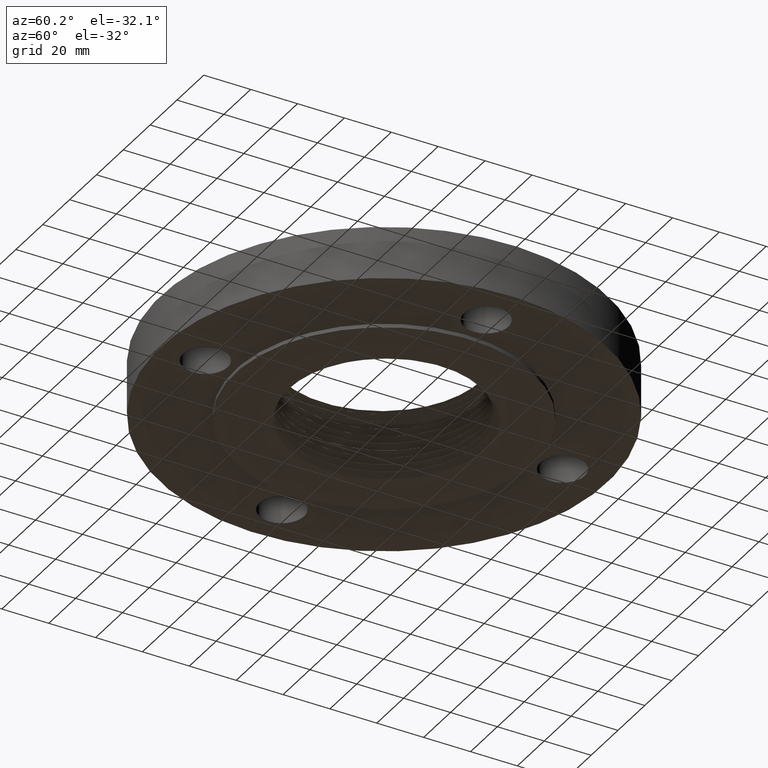
[diagram: clean part render]
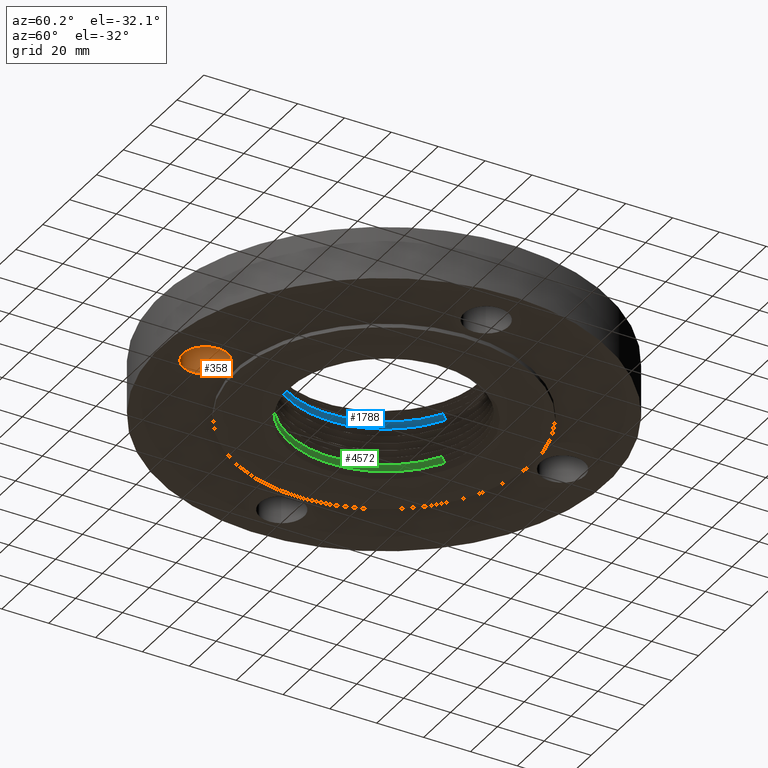
[diagram: same view with three faces highlighted in distinct colors, each labeled with its STEP entity id]
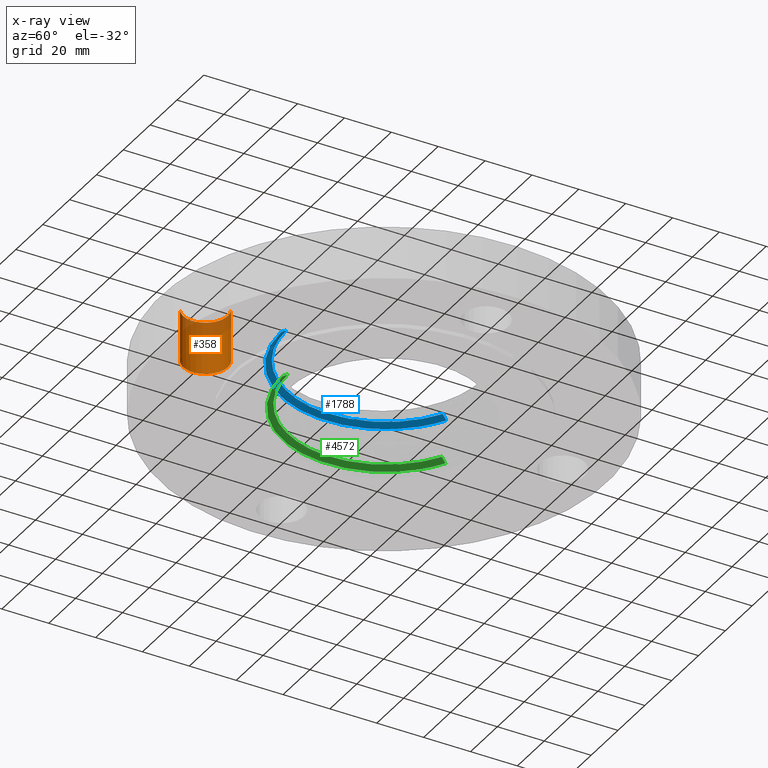
[diagram: x-ray of the same camera — body ghosted, the three highlighted faces saturated]
A machine part, auxiliary view with three faces highlighted in distinct colors.
The next image is the same camera in x-ray (body ghosted, the three faces saturated) — at least one of them is partly hidden behind the body in this view.
Their STEP definitions:

[orange] entity #358 — the highlighted cylindrical surface (edge-blend (fillet) strip) has radius 9.525 mm, axis along (0, -0, -1).
#322=AXIS2_PLACEMENT_3D('Cylinder Axis2P3D',#319,#320,#321) ;
#335=AXIS2_PLACEMENT_3D('Circle Axis2P3D',#333,#334,$) ;
#349=AXIS2_PLACEMENT_3D('Circle Axis2P3D',#347,#348,$) ;
#319=CARTESIAN_POINT('Axis2P3D Location',(-3.7578544923E-016,-3.00000000001,0.87606299213)) ;
#324=CARTESIAN_POINT('Line Origine',(-0.179784576977,-3.32909346072,0.440000000002)) ;
#328=CARTESIAN_POINT('Vertex',(-0.179784576977,-3.32909346072,0.)) ;
#330=CARTESIAN_POINT('Vertex',(-0.179784576977,-3.32909346072,0.880000000004)) ;
#333=CARTESIAN_POINT('Axis2P3D Location',(-3.7578544923E-016,-3.00000000001,0.)) ;
#337=CARTESIAN_POINT('Vertex',(0.179784576977,-2.6709065393,0.)) ;
#340=CARTESIAN_POINT('Line Origine',(0.179784576977,-2.6709065393,0.440000000002)) ;
#344=CARTESIAN_POINT('Vertex',(0.179784576977,-2.6709065393,0.880000000004)) ;
#347=CARTESIAN_POINT('Axis2P3D Location',(-3.7578544923E-016,-3.00000000001,0.880000000004)) ;
#320=DIRECTION('Axis2P3D Direction',(0.,-0.,-0.0393700787402)) ;
#321=DIRECTION('Axis2P3D XDirection',(0.0188750212049,0.0345504945626,-0.)) ;
#325=DIRECTION('Vector Direction',(0.,0.,-0.0393700787402)) ;
#334=DIRECTION('Axis2P3D Direction',(0.,-0.,-0.0393700787402)) ;
#341=DIRECTION('Vector Direction',(0.,0.,-0.0393700787402)) ;
#348=DIRECTION('Axis2P3D Direction',(0.,-0.,-0.0393700787402)) ;
#326=VECTOR('Line Direction',#325,0.0393700787402) ;
#342=VECTOR('Line Direction',#341,0.0393700787402) ;
#353=ORIENTED_EDGE('',*,*,#332,.F.) ;
#354=ORIENTED_EDGE('',*,*,#339,.T.) ;
#355=ORIENTED_EDGE('',*,*,#346,.T.) ;
#356=ORIENTED_EDGE('',*,*,#351,.F.) ;
#358=ADVANCED_FACE('PartBody',(#357),#323,.F.) ;
#336=CIRCLE('generated circle',#335,0.375000000002) ;
#350=CIRCLE('generated circle',#349,0.375000000002) ;
#323=CYLINDRICAL_SURFACE('generated cylinder',#322,0.375000000002) ;
#332=EDGE_CURVE('',#329,#331,#327,.F.) ;
#339=EDGE_CURVE('',#329,#338,#336,.T.) ;
#346=EDGE_CURVE('',#338,#345,#343,.F.) ;
#351=EDGE_CURVE('',#331,#345,#350,.T.) ;
#352=EDGE_LOOP('',(#353,#354,#355,#356)) ;
#357=FACE_OUTER_BOUND('',#352,.T.) ;
#327=LINE('Line',#324,#326) ;
#343=LINE('Line',#340,#342) ;
#329=VERTEX_POINT('',#328) ;
#331=VERTEX_POINT('',#330) ;
#338=VERTEX_POINT('',#337) ;
#345=VERTEX_POINT('',#344) ;

[blue] entity #1788 — the highlighted face is a freeform B-spline surface patch.
#1363=CARTESIAN_POINT('Vertex',(-4.90194678857E-006,-1.63773497663,0.94067851638)) ;
#1367=CARTESIAN_POINT('Control Point',(-0.78438463014,1.43580643457,0.888125768527)) ;
#1368=CARTESIAN_POINT('Control Point',(-0.896737119144,1.3744834126,0.889682188277)) ;
#1369=CARTESIAN_POINT('Control Point',(-1.00309482077,1.30217195058,0.891238579647)) ;
#1370=CARTESIAN_POINT('Control Point',(-1.10407263731,1.21837240649,0.892823631061)) ;
#1371=CARTESIAN_POINT('Control Point',(-1.28896689683,1.02936986277,0.896022297295)) ;
#1372=CARTESIAN_POINT('Control Point',(-1.43256388509,0.807356079657,0.899220696131)) ;
#1373=CARTESIAN_POINT('Control Point',(-1.49204510058,0.690385980516,0.900805480148)) ;
#1374=CARTESIAN_POINT('Control Point',(-1.60284439288,0.40878890508,0.904466490629)) ;
#1375=CARTESIAN_POINT('Control Point',(-1.64701527695,0.108181512544,0.90812790754)) ;
#1376=CARTESIAN_POINT('Control Point',(-1.64925036072,-0.0670274686927,0.910239643748)) ;
#1377=CARTESIAN_POINT('Control Point',(-1.61791182848,-0.326584768101,0.913397144921)) ;
#1378=CARTESIAN_POINT('Control Point',(-1.53695779869,-0.573247697273,0.916542598083)) ;
#1379=CARTESIAN_POINT('Control Point',(-1.50460204122,-0.653655456637,0.917590892668)) ;
#1380=CARTESIAN_POINT('Control Point',(-1.42923584582,-0.809991812822,0.919690744234)) ;
#1381=CARTESIAN_POINT('Control Point',(-1.3339585672,-0.955024958285,0.921791030193)) ;
#1382=CARTESIAN_POINT('Control Point',(-1.28166829836,-1.02411624119,0.922839759171)) ;
#1383=CARTESIAN_POINT('Control Point',(-1.16883993339,-1.15451988369,0.924930817001)) ;
#1384=CARTESIAN_POINT('Control Point',(-1.03990818675,-1.26905636835,0.927025252236)) ;
#1385=CARTESIAN_POINT('Control Point',(-0.971508766235,-1.3222457691,0.928077180531)) ;
#1386=CARTESIAN_POINT('Control Point',(-0.827718657821,-1.41942447624,0.930185083588)) ;
#1387=CARTESIAN_POINT('Control Point',(-0.67233090185,-1.49685548749,0.932290944138)) ;
#1388=CARTESIAN_POINT('Control Point',(-0.592320129334,-1.530273803,0.933340829927)) ;
#1389=CARTESIAN_POINT('Control Point',(-0.428708569374,-1.58634931735,0.935434107473)) ;
#1390=CARTESIAN_POINT('Control Point',(-0.259073948479,-1.62049101053,0.937527125165)) ;
#1391=CARTESIAN_POINT('Control Point',(-0.173065063925,-1.63195375104,0.938576216698)) ;
#1392=CARTESIAN_POINT('Control Point',(-0.0865366237358,-1.63770186961,0.939627373409)) ;
#1393=CARTESIAN_POINT('Control Point',(-4.90194678563E-006,-1.63773497663,0.94067851638)) ;
#1394=CARTESIAN_POINT('Vertex',(-0.784379702465,1.43580912413,0.888125700264)) ;
#1741=CARTESIAN_POINT('Control Point',(-7.42057685394E-007,-1.73446003675,0.875938263171)) ;
#1742=CARTESIAN_POINT('Control Point',(-4.95673762455E-006,-1.63646098902,0.941531224878)) ;
#1743=CARTESIAN_POINT('Control Point',(-0.61186088098,-1.73424046145,0.868920188165)) ;
#1744=CARTESIAN_POINT('Control Point',(-0.577294368805,-1.63623992694,0.934513149873)) ;
#1745=CARTESIAN_POINT('Control Point',(-1.22362800713,-1.46421576542,0.861900948375)) ;
#1746=CARTESIAN_POINT('Control Point',(-1.15448447231,-1.381457973,0.927493921319)) ;
#1747=CARTESIAN_POINT('Control Point',(-1.66858999436,-0.92539130836,0.854952872332)) ;
#1748=CARTESIAN_POINT('Control Point',(-1.57428205906,-0.873074297151,0.92054583402)) ;
#1749=CARTESIAN_POINT('Control Point',(-1.89247069268,0.0518283584305,0.84442737776)) ;
#1750=CARTESIAN_POINT('Control Point',(-1.78548131077,0.048909817595,0.910020339437)) ;
#1751=CARTESIAN_POINT('Control Point',(-1.5206172932,0.914274184334,0.833899312068)) ;
#1752=CARTESIAN_POINT('Control Point',(-1.43463217137,0.862583216083,0.899492273734)) ;
#1753=CARTESIAN_POINT('Control Point',(-1.33457783809,1.16905992748,0.830396595601)) ;
#1754=CARTESIAN_POINT('Control Point',(-1.25910620159,1.10295738248,0.895989551978)) ;
#1755=CARTESIAN_POINT('Control Point',(-1.09877972915,1.3743942095,0.826891161884)) ;
#1756=CARTESIAN_POINT('Control Point',(-1.03663759923,1.296674281,0.892484123542)) ;
#1757=CARTESIAN_POINT('Control Point',(-0.830756441325,1.52069101485,0.823385447105)) ;
#1758=CARTESIAN_POINT('Control Point',(-0.783768863964,1.43469112558,0.88897840876)) ;
#1760=CARTESIAN_POINT('Control Point',(-7.42057685723E-007,-1.73446003675,0.875938263171)) ;
#1761=CARTESIAN_POINT('Control Point',(-4.90194678595E-006,-1.63773497663,0.94067851638)) ;
#1762=CARTESIAN_POINT('Vertex',(-7.42057686969E-007,-1.73446003675,0.875938263171)) ;
#1766=CARTESIAN_POINT('Control Point',(-7.42057685394E-007,-1.73446003675,0.875938263171)) ;
#1767=CARTESIAN_POINT('Control Point',(-0.61186088098,-1.73424046145,0.868920188165)) ;
#1768=CARTESIAN_POINT('Control Point',(-1.22362800713,-1.46421576542,0.861900948375)) ;
#1769=CARTESIAN_POINT('Control Point',(-1.66858999436,-0.92539130836,0.854952872332)) ;
#1770=CARTESIAN_POINT('Control Point',(-1.89247069268,0.0518283584305,0.84442737776)) ;
#1771=CARTESIAN_POINT('Control Point',(-1.5206172932,0.914274184334,0.833899312068)) ;
#1772=CARTESIAN_POINT('Control Point',(-1.33457783809,1.16905992748,0.830396595601)) ;
#1773=CARTESIAN_POINT('Control Point',(-1.09877972915,1.3743942095,0.826891161884)) ;
#1774=CARTESIAN_POINT('Control Point',(-0.830756441325,1.52069101485,0.823385447105)) ;
#1775=CARTESIAN_POINT('Vertex',(-0.830756441325,1.52069101485,0.823385447105)) ;
#1779=CARTESIAN_POINT('Control Point',(-0.830756441325,1.52069101485,0.823385447105)) ;
#1780=CARTESIAN_POINT('Control Point',(-0.784379702465,1.43580912413,0.888125700264)) ;
#1783=ORIENTED_EDGE('',*,*,#1764,.T.) ;
#1784=ORIENTED_EDGE('',*,*,#1777,.T.) ;
#1785=ORIENTED_EDGE('',*,*,#1781,.F.) ;
#1786=ORIENTED_EDGE('',*,*,#1396,.T.) ;
#1788=ADVANCED_FACE('PartBody',(#1787),#1740,.T.) ;
#1366=B_SPLINE_CURVE_WITH_KNOTS('',5,(#1367,#1368,#1369,#1370,#1371,#1372,#1373,#1374,#1375,#1376,#1377,#1378,#1379,#1380,#1381,#1382,#1383,#1384,#1385,#1386,#1387,#1388,#1389,#1390,#1391,#1392,#1393),.UNSPECIFIED.,.F.,.U.,(6,3,3,3,3,3,3,3,6),(0.,23.5645700511,47.1291401022,79.0063270977,94.8714636346,110.736600171,126.59729768,142.457995189,158.380374393),.UNSPECIFIED.) ;
#1759=B_SPLINE_CURVE_WITH_KNOTS('',1,(#1760,#1761),.UNSPECIFIED.,.F.,.U.,(2,2),(-1.49764450472,1.45870574781),.UNSPECIFIED.) ;
#1765=B_SPLINE_CURVE_WITH_KNOTS('',5,(#1766,#1767,#1768,#1769,#1770,#1771,#1772,#1773,#1774),.UNSPECIFIED.,.F.,.U.,(6,3,6),(0.,75.5057577602,113.186153911),.UNSPECIFIED.) ;
#1778=B_SPLINE_CURVE_WITH_KNOTS('',1,(#1779,#1780),.UNSPECIFIED.,.F.,.U.,(2,2),(-1.49764450472,1.45870574788),.UNSPECIFIED.) ;
#1740=B_SPLINE_SURFACE_WITH_KNOTS('',5,1,((#1741,#1742),(#1743,#1744),(#1745,#1746),(#1747,#1748),(#1749,#1750),(#1751,#1752),(#1753,#1754),(#1755,#1756),(#1757,#1758)),.UNSPECIFIED.,.F.,.F.,.U.,(6,3,6),(2,2),(0.,75.5057577602,113.186153911),(-1.49764450472,1.49764450472),.UNSPECIFIED.) ;
#1396=EDGE_CURVE('',#1395,#1364,#1366,.T.) ;
#1764=EDGE_CURVE('',#1364,#1763,#1759,.F.) ;
#1777=EDGE_CURVE('',#1763,#1776,#1765,.T.) ;
#1781=EDGE_CURVE('',#1395,#1776,#1778,.F.) ;
#1782=EDGE_LOOP('',(#1783,#1784,#1785,#1786)) ;
#1787=FACE_OUTER_BOUND('',#1782,.T.) ;
#1364=VERTEX_POINT('',#1363) ;
#1395=VERTEX_POINT('',#1394) ;
#1763=VERTEX_POINT('',#1762) ;
#1776=VERTEX_POINT('',#1775) ;

[green] entity #4572 — the highlighted face is a freeform B-spline surface patch.
#4239=CARTESIAN_POINT('Vertex',(-1.51955600196E-005,-1.61429761551,0.190678514745)) ;
#4243=CARTESIAN_POINT('Control Point',(-0.773148162612,1.41523821873,0.138125894999)) ;
#4244=CARTESIAN_POINT('Control Point',(-0.883907913495,1.35478532176,0.139682545217)) ;
#4245=CARTESIAN_POINT('Control Point',(-0.98875711509,1.28349812718,0.141239167891)) ;
#4246=CARTESIAN_POINT('Control Point',(-1.08828157385,1.20089670329,0.142824171615)) ;
#4247=CARTESIAN_POINT('Control Point',(-1.27050445446,1.0146219245,0.146022463423)) ;
#4248=CARTESIAN_POINT('Control Point',(-1.41203142902,0.795815901713,0.149220487832)) ;
#4249=CARTESIAN_POINT('Control Point',(-1.47066535004,0.680527670066,0.150805224157)) ;
#4250=CARTESIAN_POINT('Control Point',(-1.5798893148,0.402947232259,0.154466466295)) ;
#4251=CARTESIAN_POINT('Control Point',(-1.62343083595,0.106626202758,0.158128111759)) ;
#4252=CARTESIAN_POINT('Control Point',(-1.6256344702,-0.0660740390951,0.16023975271)) ;
#4253=CARTESIAN_POINT('Control Point',(-1.59474491752,-0.32191626886,0.163397168812)) ;
#4254=CARTESIAN_POINT('Control Point',(-1.51494862888,-0.565050758984,0.166542703416)) ;
#4255=CARTESIAN_POINT('Control Point',(-1.48305598746,-0.644307179326,0.167591024748)) ;
#4256=CARTESIAN_POINT('Control Point',(-1.40876878638,-0.798404850676,0.169690936254)) ;
#4257=CARTESIAN_POINT('Control Point',(-1.31485534635,-0.941361603483,0.171791274578)) ;
#4258=CARTESIAN_POINT('Control Point',(-1.26331340968,-1.00946405034,0.172840022729)) ;
#4259=CARTESIAN_POINT('Control Point',(-1.15209952424,-1.13800124405,0.174931084334)) ;
#4260=CARTESIAN_POINT('Control Point',(-1.02501275815,-1.25089821077,0.177025476202)) ;
#4261=CARTESIAN_POINT('Control Point',(-0.957592396347,-1.30332607014,0.178077372668)) ;
#4262=CARTESIAN_POINT('Control Point',(-0.815860397422,-1.39911336495,0.180185220714)) ;
#4263=CARTESIAN_POINT('Control Point',(-0.662697440845,-1.47543538583,0.182291056253)) ;
#4264=CARTESIAN_POINT('Control Point',(-0.58383260027,-1.50837489399,0.183340940212)) ;
#4265=CARTESIAN_POINT('Control Point',(-0.422566803821,-1.56364634569,0.185434216361)) ;
#4266=CARTESIAN_POINT('Control Point',(-0.255365348112,-1.59729888674,0.187527234341)) ;
#4267=CARTESIAN_POINT('Control Point',(-0.170591047171,-1.60859759289,0.188576309082)) ;
#4268=CARTESIAN_POINT('Control Point',(-0.0853047819682,-1.61426396611,0.189627418527)) ;
#4269=CARTESIAN_POINT('Control Point',(-1.51955600216E-005,-1.61429761551,0.190678514745)) ;
#4270=CARTESIAN_POINT('Vertex',(-0.773134181726,1.41524584943,0.138125698508)) ;
#4435=CARTESIAN_POINT('Vertex',(-7.52228348412E-007,-1.71102267574,0.125938263043)) ;
#4439=CARTESIAN_POINT('Control Point',(-7.52228348402E-007,-1.71102267574,0.125938263043)) ;
#4440=CARTESIAN_POINT('Control Point',(-1.51955600196E-005,-1.61429761551,0.190678514745)) ;
#4531=CARTESIAN_POINT('Control Point',(-7.52228352935E-007,-1.71102267574,0.125938263043)) ;
#4532=CARTESIAN_POINT('Control Point',(-1.53857963958E-005,-1.61302362796,0.19153122318)) ;
#4533=CARTESIAN_POINT('Control Point',(-0.603588451711,-1.71080309847,0.118920240531)) ;
#4534=CARTESIAN_POINT('Control Point',(-0.569032619636,-1.61279888845,0.184513200644)) ;
#4535=CARTESIAN_POINT('Control Point',(-1.20708429764,-1.44442823267,0.111901042001)) ;
#4536=CARTESIAN_POINT('Control Point',(-1.13794990013,-1.36166286881,0.177493992101)) ;
#4537=CARTESIAN_POINT('Control Point',(-1.64603039531,-0.912887776319,0.104952960419)) ;
#4538=CARTESIAN_POINT('Control Point',(-1.55172828132,-0.860560298577,0.170545920798)) ;
#4539=CARTESIAN_POINT('Control Point',(-1.86688415078,0.0511208247202,0.0944274689152)) ;
#4540=CARTESIAN_POINT('Control Point',(-1.75989440653,0.0482141494742,0.160020428791)) ;
#4541=CARTESIAN_POINT('Control Point',(-1.50005675471,0.901906468834,0.0838993712259)) ;
#4542=CARTESIAN_POINT('Control Point',(-1.41406595749,0.850224906341,0.149492331299)) ;
#4543=CARTESIAN_POINT('Control Point',(-1.31653177158,1.1532473557,0.0803966466885)) ;
#4544=CARTESIAN_POINT('Control Point',(-1.24105292881,1.08715300832,0.145989608226)) ;
#4545=CARTESIAN_POINT('Control Point',(-1.0839206543,1.35580503144,0.0768911864314)) ;
#4546=CARTESIAN_POINT('Control Point',(-1.0217701394,1.27809177984,0.142484146402)) ;
#4547=CARTESIAN_POINT('Control Point',(-0.819519962958,1.50012280042,0.0733854469774)) ;
#4548=CARTESIAN_POINT('Control Point',(-0.772523224159,1.414127916,0.138978406936)) ;
#4550=CARTESIAN_POINT('Control Point',(-7.52228352935E-007,-1.71102267574,0.125938263043)) ;
#4551=CARTESIAN_POINT('Control Point',(-0.603588451711,-1.71080309847,0.118920240531)) ;
#4552=CARTESIAN_POINT('Control Point',(-1.20708429764,-1.44442823267,0.111901042001)) ;
#4553=CARTESIAN_POINT('Control Point',(-1.64603039531,-0.912887776319,0.104952960419)) ;
#4554=CARTESIAN_POINT('Control Point',(-1.86688415078,0.0511208247202,0.0944274689152)) ;
#4555=CARTESIAN_POINT('Control Point',(-1.50005675471,0.901906468834,0.0838993712259)) ;
#4556=CARTESIAN_POINT('Control Point',(-1.31653177158,1.1532473557,0.0803966466885)) ;
#4557=CARTESIAN_POINT('Control Point',(-1.0839206543,1.35580503144,0.0768911864314)) ;
#4558=CARTESIAN_POINT('Control Point',(-0.819519962958,1.50012280042,0.0733854469774)) ;
#4559=CARTESIAN_POINT('Vertex',(-0.819519962958,1.50012280042,0.0733854469774)) ;
#4563=CARTESIAN_POINT('Control Point',(-0.819519962958,1.50012280042,0.0733854469774)) ;
#4564=CARTESIAN_POINT('Control Point',(-0.773134181726,1.41524584943,0.138125698508)) ;
#4567=ORIENTED_EDGE('',*,*,#4441,.T.) ;
#4568=ORIENTED_EDGE('',*,*,#4561,.T.) ;
#4569=ORIENTED_EDGE('',*,*,#4565,.F.) ;
#4570=ORIENTED_EDGE('',*,*,#4272,.T.) ;
#4572=ADVANCED_FACE('PartBody',(#4571),#4530,.T.) ;
#4242=B_SPLINE_CURVE_WITH_KNOTS('',5,(#4243,#4244,#4245,#4246,#4247,#4248,#4249,#4250,#4251,#4252,#4253,#4254,#4255,#4256,#4257,#4258,#4259,#4260,#4261,#4262,#4263,#4264,#4265,#4266,#4267,#4268,#4269),.UNSPECIFIED.,.F.,.U.,(6,3,3,3,3,3,3,3,6),(0.,23.4033789458,46.8067578917,78.4611887263,94.2152258427,109.969262959,125.718684475,141.468105992,157.278525074),.UNSPECIFIED.) ;
#4438=B_SPLINE_CURVE_WITH_KNOTS('',1,(#4439,#4440),.UNSPECIFIED.,.F.,.U.,(2,2),(-1.49764450472,1.45870574973),.UNSPECIFIED.) ;
#4549=B_SPLINE_CURVE_WITH_KNOTS('',5,(#4550,#4551,#4552,#4553,#4554,#4555,#4556,#4557,#4558),.UNSPECIFIED.,.F.,.U.,(6,3,6),(0.,74.4557173142,111.612130595),.UNSPECIFIED.) ;
#4562=B_SPLINE_CURVE_WITH_KNOTS('',1,(#4563,#4564),.UNSPECIFIED.,.F.,.U.,(2,2),(-1.49764450472,1.45870574995),.UNSPECIFIED.) ;
#4530=B_SPLINE_SURFACE_WITH_KNOTS('',5,1,((#4531,#4532),(#4533,#4534),(#4535,#4536),(#4537,#4538),(#4539,#4540),(#4541,#4542),(#4543,#4544),(#4545,#4546),(#4547,#4548)),.UNSPECIFIED.,.F.,.F.,.U.,(6,3,6),(2,2),(0.,74.4557173142,111.612130595),(-1.49764450472,1.49764450472),.UNSPECIFIED.) ;
#4272=EDGE_CURVE('',#4271,#4240,#4242,.T.) ;
#4441=EDGE_CURVE('',#4240,#4436,#4438,.F.) ;
#4561=EDGE_CURVE('',#4436,#4560,#4549,.T.) ;
#4565=EDGE_CURVE('',#4271,#4560,#4562,.F.) ;
#4566=EDGE_LOOP('',(#4567,#4568,#4569,#4570)) ;
#4571=FACE_OUTER_BOUND('',#4566,.T.) ;
#4240=VERTEX_POINT('',#4239) ;
#4271=VERTEX_POINT('',#4270) ;
#4436=VERTEX_POINT('',#4435) ;
#4560=VERTEX_POINT('',#4559) ;